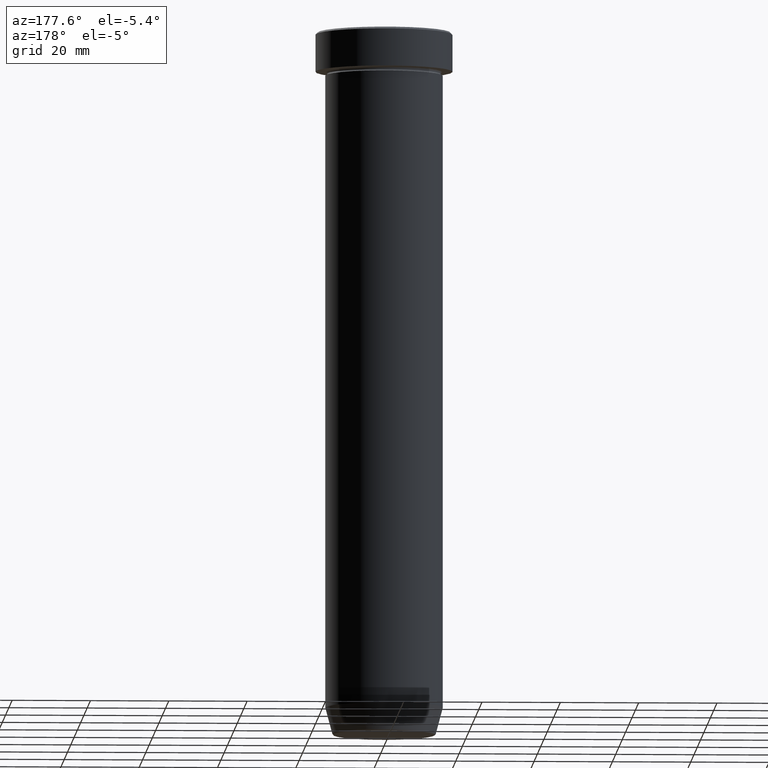
[diagram: clean part render]
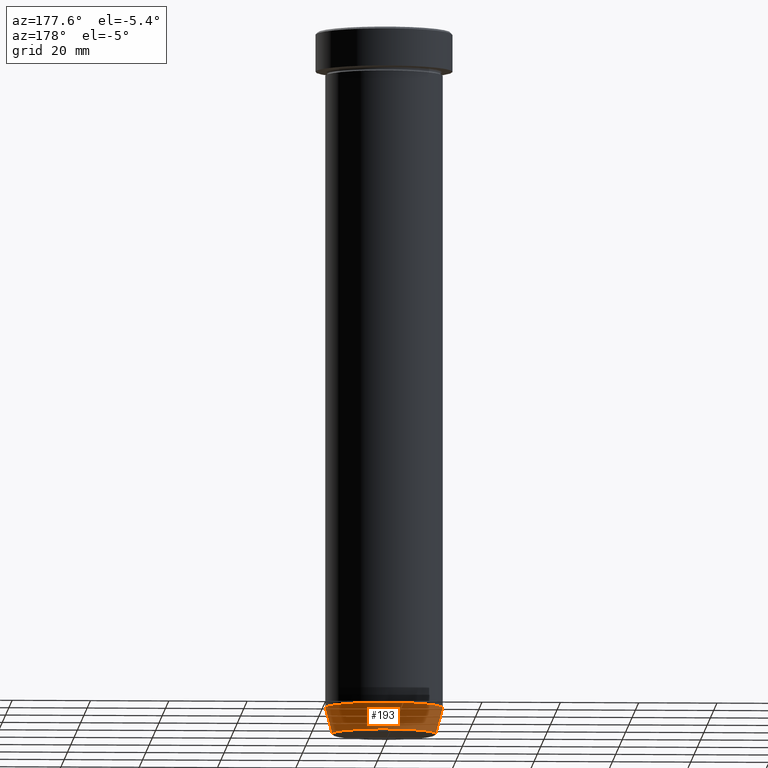
[diagram: same view with one face highlighted and labeled with its STEP entity id]
A machine part, auxiliary view. The second image highlights one B-rep face of the part: STEP entity #193.
In plain terms, the highlighted conical surface has half-angle 15 deg.
Its self-contained STEP definition (entity closure, byte-faithful):
#9 = EDGE_CURVE ( 'NONE', #333, #66, #551, .T. ) ;
#10 = EDGE_LOOP ( 'NONE', ( #458, #541, #545, #58 ) ) ;
#52 = DIRECTION ( 'NONE',  ( -1.000000000000000000, 0.000000000000000000, 0.000000000000000000 ) ) ;
#58 = ORIENTED_EDGE ( 'NONE', *, *, #9, .F. ) ;
#66 = VERTEX_POINT ( 'NONE', #308 ) ;
#96 = CARTESIAN_POINT ( 'NONE',  ( -13.12435565298213369, 1.607270014129604188E-15, -180.0000000000000000 ) ) ;
#129 = CARTESIAN_POINT ( 'NONE',  ( 13.22365507213718594, 0.000000000000000000, -179.6294095225512422 ) ) ;
#141 = DIRECTION ( 'NONE',  ( -0.000000000000000000, -0.000000000000000000, 1.000000000000000000 ) ) ;
#143 = CARTESIAN_POINT ( 'NONE',  ( 13.12435565298213369, 0.000000000000000000, -180.0000000000000000 ) ) ;
#150 = DIRECTION ( 'NONE',  ( -0.2588190451025214611, 3.169619151431774186E-17, 0.9659258262890679791 ) ) ;
#167 = FACE_OUTER_BOUND ( 'NONE', #10, .T. ) ;
#185 = VECTOR ( 'NONE', #150, 1000.000000000000114 ) ;
#189 = DIRECTION ( 'NONE',  ( 0.2588190451025214611, 0.000000000000000000, 0.9659258262890679791 ) ) ;
#192 = LINE ( 'NONE', #96, #185 ) ;
#193 = ADVANCED_FACE ( 'NONE', ( #167 ), #507, .T. ) ;
#227 = VERTEX_POINT ( 'NONE', #488 ) ;
#243 = CARTESIAN_POINT ( 'NONE',  ( 0.000000000000000000, 0.000000000000000000, -173.0000000000000000 ) ) ;
#263 = DIRECTION ( 'NONE',  ( 1.000000000000000000, 0.000000000000000000, 0.000000000000000000 ) ) ;
#267 = AXIS2_PLACEMENT_3D ( 'NONE', #490, #436, #263 ) ;
#308 = CARTESIAN_POINT ( 'NONE',  ( 15.00000000000000178, 0.000000000000000000, -173.0000000000000000 ) ) ;
#333 = VERTEX_POINT ( 'NONE', #129 ) ;
#342 = DIRECTION ( 'NONE',  ( -0.000000000000000000, -0.000000000000000000, 1.000000000000000000 ) ) ;
#373 = DIRECTION ( 'NONE',  ( 1.000000000000000000, 0.000000000000000000, 0.000000000000000000 ) ) ;
#417 = CARTESIAN_POINT ( 'NONE',  ( 0.000000000000000000, 0.000000000000000000, -179.6294095225512422 ) ) ;
#436 = DIRECTION ( 'NONE',  ( -0.000000000000000000, -0.000000000000000000, 1.000000000000000000 ) ) ;
#444 = VERTEX_POINT ( 'NONE', #526 ) ;
#458 = ORIENTED_EDGE ( 'NONE', *, *, #511, .T. ) ;
#463 = EDGE_CURVE ( 'NONE', #66, #444, #466, .T. ) ;
#466 = CIRCLE ( 'NONE', #509, 15.00000000000000178 ) ;
#474 = VECTOR ( 'NONE', #189, 1000.000000000000114 ) ;
#488 = CARTESIAN_POINT ( 'NONE',  ( -13.22365507213718594, 1.728200442216588189E-15, -179.6294095225512422 ) ) ;
#490 = CARTESIAN_POINT ( 'NONE',  ( 0.000000000000000000, 0.000000000000000000, -180.0000000000000000 ) ) ;
#499 = CIRCLE ( 'NONE', #591, 13.22365507213718594 ) ;
#507 = CONICAL_SURFACE ( 'NONE', #267, 13.12435565298213369, 0.2617993877991502405 ) ;
#509 = AXIS2_PLACEMENT_3D ( 'NONE', #243, #141, #373 ) ;
#511 = EDGE_CURVE ( 'NONE', #333, #227, #499, .T. ) ;
#526 = CARTESIAN_POINT ( 'NONE',  ( -15.00000000000000355, 1.836970198721029983E-15, -173.0000000000000000 ) ) ;
#541 = ORIENTED_EDGE ( 'NONE', *, *, #563, .T. ) ;
#545 = ORIENTED_EDGE ( 'NONE', *, *, #463, .F. ) ;
#551 = LINE ( 'NONE', #143, #474 ) ;
#563 = EDGE_CURVE ( 'NONE', #227, #444, #192, .T. ) ;
#591 = AXIS2_PLACEMENT_3D ( 'NONE', #417, #342, #52 ) ;